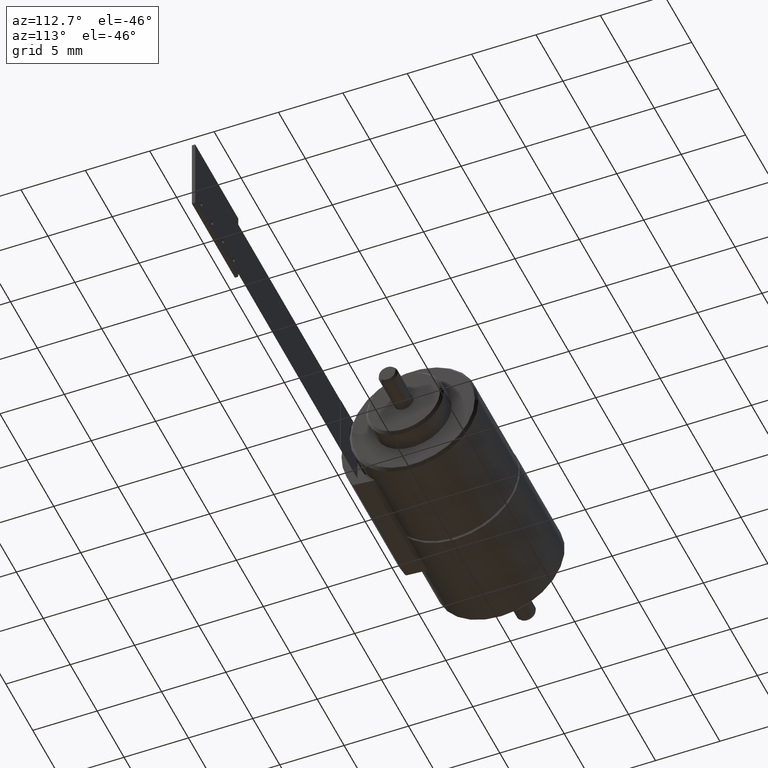
[diagram: clean part render]
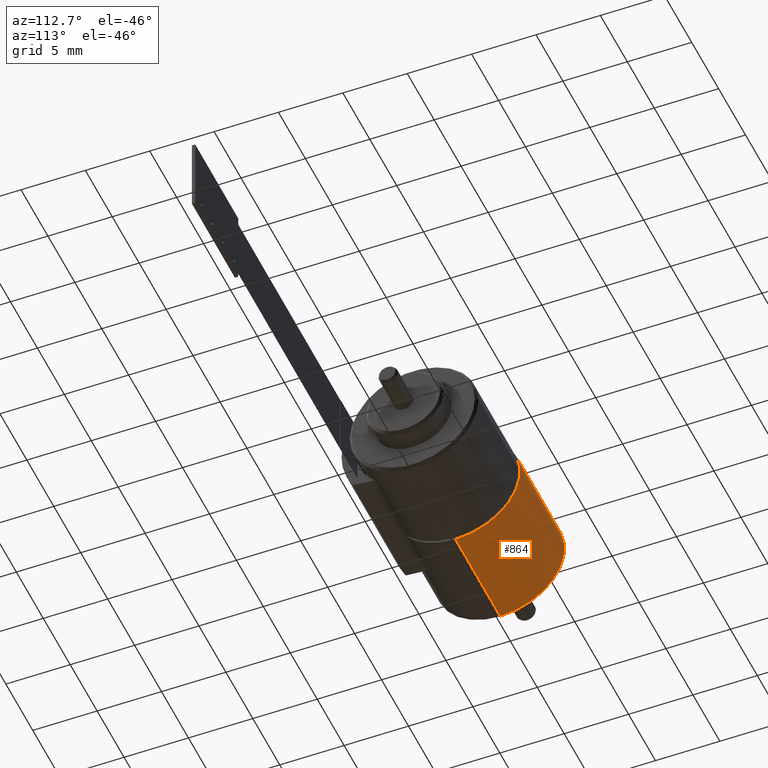
[diagram: same view with one face highlighted and labeled with its STEP entity id]
A machine part, auxiliary view. The second image highlights one B-rep face of the part: STEP entity #864.
In plain terms, the highlighted cylindrical surface (partial cylindrical patch) has radius 5 mm, axis along (1, 0, 0).
Its self-contained STEP definition (entity closure, byte-faithful):
#257=CARTESIAN_POINT('',(8.3E0,0.E0,0.E0));
#258=DIRECTION('',(-1.E0,0.E0,0.E0));
#259=DIRECTION('',(0.E0,0.E0,1.E0));
#260=AXIS2_PLACEMENT_3D('',#257,#258,#259);
#262=DIRECTION('',(-1.E0,0.E0,0.E0));
#263=VECTOR('',#262,8.3E0);
#264=CARTESIAN_POINT('',(8.3E0,0.E0,5.E0));
#265=LINE('',#264,#263);
#266=DIRECTION('',(-1.E0,0.E0,0.E0));
#267=VECTOR('',#266,8.3E0);
#268=CARTESIAN_POINT('',(8.3E0,0.E0,-5.E0));
#269=LINE('',#268,#267);
#297=CARTESIAN_POINT('',(0.E0,0.E0,0.E0));
#298=DIRECTION('',(1.E0,0.E0,0.E0));
#299=DIRECTION('',(0.E0,0.E0,-1.E0));
#300=AXIS2_PLACEMENT_3D('',#297,#298,#299);
#485=CARTESIAN_POINT('',(8.3E0,0.E0,-5.E0));
#486=VERTEX_POINT('',#485);
#487=CARTESIAN_POINT('',(8.3E0,0.E0,5.E0));
#488=VERTEX_POINT('',#487);
#489=CARTESIAN_POINT('',(0.E0,0.E0,5.E0));
#490=VERTEX_POINT('',#489);
#491=CARTESIAN_POINT('',(0.E0,0.E0,-5.E0));
#492=VERTEX_POINT('',#491);
#850=CARTESIAN_POINT('',(9.246546227418E-1,0.E0,0.E0));
#851=DIRECTION('',(-1.E0,0.E0,0.E0));
#852=DIRECTION('',(0.E0,0.E0,1.E0));
#853=AXIS2_PLACEMENT_3D('',#850,#851,#852);
#854=CYLINDRICAL_SURFACE('',#853,5.E0);
#855=ORIENTED_EDGE('',*,*,#844,.F.);
#857=ORIENTED_EDGE('',*,*,#856,.T.);
#859=ORIENTED_EDGE('',*,*,#858,.F.);
#861=ORIENTED_EDGE('',*,*,#860,.F.);
#862=EDGE_LOOP('',(#855,#857,#859,#861));
#863=FACE_OUTER_BOUND('',#862,.F.);
#864=ADVANCED_FACE('',(#863),#854,.T.);
#261=CIRCLE('',#260,5.E0);
#301=CIRCLE('',#300,5.E0);
#844=EDGE_CURVE('',#488,#486,#261,.T.);
#856=EDGE_CURVE('',#488,#490,#265,.T.);
#858=EDGE_CURVE('',#492,#490,#301,.T.);
#860=EDGE_CURVE('',#486,#492,#269,.T.);